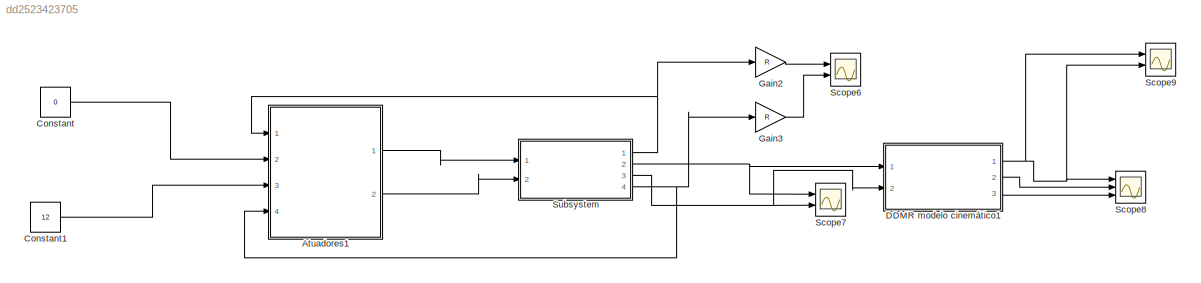
MODEL slx_dd2523423705
KIND model
CONFIG AbsTol = auto
CONFIG EnableMultiTasking = off
CONFIG FixedStep = auto
CONFIG MaxStep = auto
CONFIG MinStep = auto
CONFIG RelTol = 1e-3
CONFIG SampleTimeConstraint = Unconstrained
CONFIG Solver = VariableStepAuto
CONFIG SolverName = VariableStepAuto
CONFIG StartTime = 0.0
CONFIG StopTime = 10.0
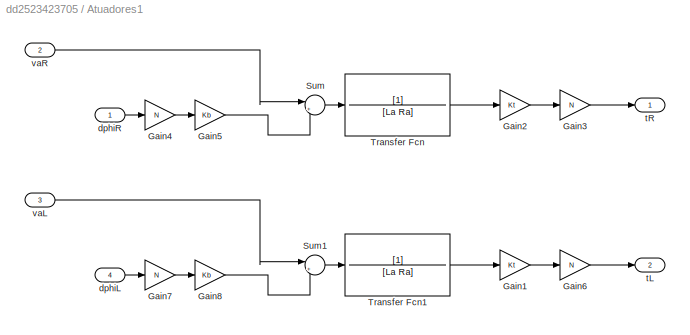
BLOCK [SubSystem] Atuadores1
  Ports = [4, 2]
  RequestExecContextInheritance = off
BLOCK [Gain] Atuadores1/Gain1
  Gain = Kt
  OutDataTypeStr = Inherit: Inherit via internal rule
  ParamDataTypeStr = Inherit: Inherit via internal rule
  SaturateOnIntegerOverflow = off
BLOCK [Gain] Atuadores1/Gain2
  Gain = Kt
  OutDataTypeStr = Inherit: Inherit via internal rule
  ParamDataTypeStr = Inherit: Inherit via internal rule
  SaturateOnIntegerOverflow = off
BLOCK [Gain] Atuadores1/Gain3
  Gain = N
  OutDataTypeStr = Inherit: Inherit via internal rule
  ParamDataTypeStr = Inherit: Inherit via internal rule
  SaturateOnIntegerOverflow = off
BLOCK [Gain] Atuadores1/Gain4
  Gain = N
  OutDataTypeStr = Inherit: Inherit via internal rule
  ParamDataTypeStr = Inherit: Inherit via internal rule
  SaturateOnIntegerOverflow = off
BLOCK [Gain] Atuadores1/Gain5
  Gain = Kb
  OutDataTypeStr = Inherit: Inherit via internal rule
  ParamDataTypeStr = Inherit: Inherit via internal rule
  SaturateOnIntegerOverflow = off
BLOCK [Gain] Atuadores1/Gain6
  Gain = N
  OutDataTypeStr = Inherit: Inherit via internal rule
  ParamDataTypeStr = Inherit: Inherit via internal rule
  SaturateOnIntegerOverflow = off
BLOCK [Gain] Atuadores1/Gain7
  Gain = N
  OutDataTypeStr = Inherit: Inherit via internal rule
  ParamDataTypeStr = Inherit: Inherit via internal rule
  SaturateOnIntegerOverflow = off
BLOCK [Gain] Atuadores1/Gain8
  Gain = Kb
  OutDataTypeStr = Inherit: Inherit via internal rule
  ParamDataTypeStr = Inherit: Inherit via internal rule
  SaturateOnIntegerOverflow = off
BLOCK [Sum] Atuadores1/Sum
  IconShape = round
  InputSameDT = off
  Inputs = |+-
  OutDataTypeStr = Inherit: Inherit via internal rule
  Ports = [2, 1]
  SaturateOnIntegerOverflow = off
BLOCK [Sum] Atuadores1/Sum1
  IconShape = round
  InputSameDT = off
  Inputs = |+-
  OutDataTypeStr = Inherit: Inherit via internal rule
  Ports = [2, 1]
  SaturateOnIntegerOverflow = off
BLOCK [TransferFcn] Atuadores1/Transfer Fcn
  Denominator = [La Ra]
BLOCK [TransferFcn] Atuadores1/Transfer Fcn1
  Denominator = [La Ra]
BLOCK [Inport] Atuadores1/dphiL
  IconDisplay = Port number
  Port = 4
BLOCK [Inport] Atuadores1/dphiR
  IconDisplay = Port number
BLOCK [Outport] Atuadores1/tL
  IconDisplay = Port number
  Port = 2
BLOCK [Outport] Atuadores1/tR
  IconDisplay = Port number
BLOCK [Inport] Atuadores1/vaL
  IconDisplay = Port number
  Port = 3
BLOCK [Inport] Atuadores1/vaR
  IconDisplay = Port number
  Port = 2
BLOCK [Constant] Constant
  Value = 0
BLOCK [Constant] Constant1
  Value = 12
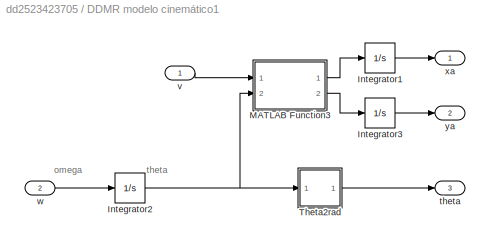
BLOCK [SubSystem] DDMR modelo cinemático1
  Ports = [2, 3]
  RequestExecContextInheritance = off
BLOCK [Integrator] DDMR modelo cinemático1/Integrator1
  Ports = [1, 1]
BLOCK [Integrator] DDMR modelo cinemático1/Integrator2
  Ports = [1, 1]
BLOCK [Integrator] DDMR modelo cinemático1/Integrator3
  Ports = [1, 1]
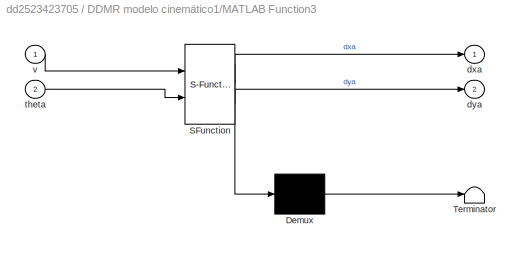
BLOCK [SubSystem] DDMR modelo cinemático1/MATLAB Function3
  ErrorFcn = Stateflow.Translate.translate
  PermitHierarchicalResolution = ExplicitOnly
  Ports = [2, 2]
  RequestExecContextInheritance = off
  SFBlockType = MATLAB Function
  TreatAsAtomicUnit = on
BLOCK [Demux] DDMR modelo cinemático1/MATLAB Function3/ Demux 
  Outputs = 1
  Ports = [1, 1]
BLOCK [S-Function] DDMR modelo cinemático1/MATLAB Function3/ SFunction 
  EnableBusSupport = on
  FunctionName = sf_sfun
  PortCounts = [2 3]
  Ports = [2, 3]
  SFcnIsStateOwnerBlock = off
  SFunctionDeploymentMode = off
  Tag = Stateflow S-Function ex 4
BLOCK [Terminator] DDMR modelo cinemático1/MATLAB Function3/ Terminator 
BLOCK [Outport] DDMR modelo cinemático1/MATLAB Function3/dxa
  IconDisplay = Port number
BLOCK [Outport] DDMR modelo cinemático1/MATLAB Function3/dya
  IconDisplay = Port number
  Port = 2
BLOCK [Inport] DDMR modelo cinemático1/MATLAB Function3/theta
  IconDisplay = Port number
  Port = 2
BLOCK [Inport] DDMR modelo cinemático1/MATLAB Function3/v
  IconDisplay = Port number
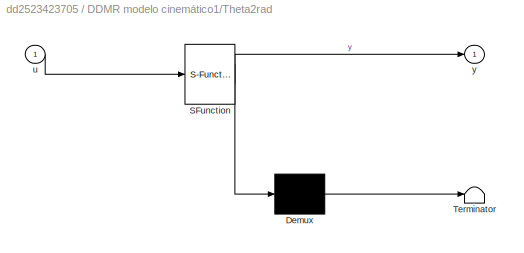
BLOCK [SubSystem] DDMR modelo cinemático1/Theta2rad
  ErrorFcn = Stateflow.Translate.translate
  PermitHierarchicalResolution = ExplicitOnly
  Ports = [1, 1]
  RequestExecContextInheritance = off
  SFBlockType = MATLAB Function
  TreatAsAtomicUnit = on
BLOCK [Demux] DDMR modelo cinemático1/Theta2rad/ Demux 
  Outputs = 1
  Ports = [1, 1]
BLOCK [S-Function] DDMR modelo cinemático1/Theta2rad/ SFunction 
  EnableBusSupport = on
  FunctionName = sf_sfun
  PortCounts = [1 2]
  Ports = [1, 2]
  SFcnIsStateOwnerBlock = off
  SFunctionDeploymentMode = off
  Tag = Stateflow S-Function ex 5
BLOCK [Terminator] DDMR modelo cinemático1/Theta2rad/ Terminator 
BLOCK [Inport] DDMR modelo cinemático1/Theta2rad/u
  IconDisplay = Port number
BLOCK [Outport] DDMR modelo cinemático1/Theta2rad/y
  IconDisplay = Port number
BLOCK [Outport] DDMR modelo cinemático1/theta
  IconDisplay = Port number
  Port = 3
BLOCK [Inport] DDMR modelo cinemático1/v
  IconDisplay = Port number
BLOCK [Inport] DDMR modelo cinemático1/w
  IconDisplay = Port number
  Port = 2
BLOCK [Outport] DDMR modelo cinemático1/xa
  IconDisplay = Port number
BLOCK [Outport] DDMR modelo cinemático1/ya
  IconDisplay = Port number
  Port = 2
BLOCK [Gain] Gain2
  Gain = R
  OutDataTypeStr = Inherit: Inherit via internal rule
  ParamDataTypeStr = Inherit: Inherit via internal rule
  SaturateOnIntegerOverflow = off
BLOCK [Gain] Gain3
  Gain = R
  OutDataTypeStr = Inherit: Inherit via internal rule
  ParamDataTypeStr = Inherit: Inherit via internal rule
  SaturateOnIntegerOverflow = off
BLOCK [Scope] Scope6
  Floating = off
  NumInputPorts = 2
  Ports = [2]
  ScopeSpecificationString = Simulink.scopes.TimeScopeBlockCfg('CurrentConfiguration', extmgr.ConfigurationSet(extmgr.Configuration('Core','General UI',true),extmgr.Configuration('Core','Source UI',true),extmgr.Configuration('Sources','WiredSimulink',true,'DataLoggingVariableName','ScopeData2'),extmgr.Configuration('Visuals','Time Domain',true,'SerializedDisplays',{struct('MinYLimReal','-4.75013','MaxYLimReal','6.00309','YLab...<+1399ch>
BLOCK [Scope] Scope7
  Floating = off
  NumInputPorts = 2
  Ports = [2]
  ScopeSpecificationString = Simulink.scopes.TimeScopeBlockCfg('CurrentConfiguration', extmgr.ConfigurationSet(extmgr.Configuration('Core','General UI',true),extmgr.Configuration('Core','Source UI',true),extmgr.Configuration('Sources','WiredSimulink',true,'DataLoggingVariableName','ScopeData3'),extmgr.Configuration('Visuals','Time Domain',true,'SerializedDisplays',{struct('MinYLimReal','-15.87477','MaxYLimReal','5.70562','YLa...<+1415ch>
BLOCK [Scope] Scope8
  Floating = off
  NumInputPorts = 3
  Ports = [3]
  ScopeSpecificationString = Simulink.scopes.TimeScopeBlockCfg('CurrentConfiguration', extmgr.ConfigurationSet(extmgr.Configuration('Core','General UI',true),extmgr.Configuration('Core','Source UI',true),extmgr.Configuration('Sources','WiredSimulink',true,'DataLoggingVariableName','ScopeData4'),extmgr.Configuration('Visuals','Time Domain',true,'SerializedDisplays',{struct('MinYLimReal','-3.89804','MaxYLimReal','3.90704','YLab...<+1467ch>
BLOCK [Scope] Scope9
  Floating = off
  NumInputPorts = 2
  Ports = [2]
  ScopeSpecificationString = Simulink.scopes.TimeScopeBlockCfg('CurrentConfiguration', extmgr.ConfigurationSet(extmgr.Configuration('Core','General UI',true),extmgr.Configuration('Core','Source UI',true),extmgr.Configuration('Sources','WiredSimulink',true,'DataLoggingVariableName','ScopeData5'),extmgr.Configuration('Visuals','Time Domain',true,'SerializedDisplays',{struct('MinYLimReal','-0.80544','MaxYLimReal','0.64204','YLab...<+1439ch>
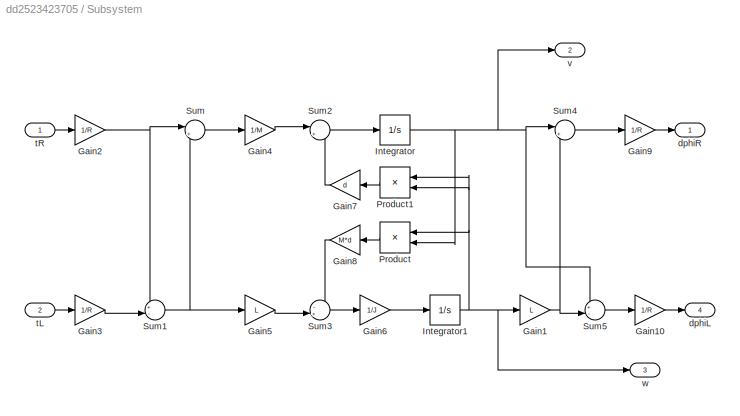
BLOCK [SubSystem] Subsystem
  Ports = [2, 4]
  RequestExecContextInheritance = off
BLOCK [Gain] Subsystem/Gain1
  Gain = L
  OutDataTypeStr = Inherit: Inherit via internal rule
  ParamDataTypeStr = Inherit: Inherit via internal rule
  SaturateOnIntegerOverflow = off
BLOCK [Gain] Subsystem/Gain10
  Gain = 1/R
  OutDataTypeStr = Inherit: Inherit via internal rule
  ParamDataTypeStr = Inherit: Inherit via internal rule
  SaturateOnIntegerOverflow = off
BLOCK [Gain] Subsystem/Gain2
  Gain = 1/R
  OutDataTypeStr = Inherit: Inherit via internal rule
  ParamDataTypeStr = Inherit: Inherit via internal rule
  SaturateOnIntegerOverflow = off
BLOCK [Gain] Subsystem/Gain3
  Gain = 1/R
  OutDataTypeStr = Inherit: Inherit via internal rule
  ParamDataTypeStr = Inherit: Inherit via internal rule
  SaturateOnIntegerOverflow = off
BLOCK [Gain] Subsystem/Gain4
  Gain = 1/M
  OutDataTypeStr = Inherit: Inherit via internal rule
  ParamDataTypeStr = Inherit: Inherit via internal rule
  SaturateOnIntegerOverflow = off
BLOCK [Gain] Subsystem/Gain5
  Gain = L
  OutDataTypeStr = Inherit: Inherit via internal rule
  ParamDataTypeStr = Inherit: Inherit via internal rule
  SaturateOnIntegerOverflow = off
BLOCK [Gain] Subsystem/Gain6
  Gain = 1/J
  OutDataTypeStr = Inherit: Inherit via internal rule
  ParamDataTypeStr = Inherit: Inherit via internal rule
  SaturateOnIntegerOverflow = off
BLOCK [Gain] Subsystem/Gain7
  Gain = d
  OutDataTypeStr = Inherit: Inherit via internal rule
  ParamDataTypeStr = Inherit: Inherit via internal rule
  SaturateOnIntegerOverflow = off
BLOCK [Gain] Subsystem/Gain8
  Gain = M*d
  OutDataTypeStr = Inherit: Inherit via internal rule
  ParamDataTypeStr = Inherit: Inherit via internal rule
  SaturateOnIntegerOverflow = off
BLOCK [Gain] Subsystem/Gain9
  Gain = 1/R
  OutDataTypeStr = Inherit: Inherit via internal rule
  ParamDataTypeStr = Inherit: Inherit via internal rule
  SaturateOnIntegerOverflow = off
BLOCK [Integrator] Subsystem/Integrator
  Ports = [1, 1]
BLOCK [Integrator] Subsystem/Integrator1
  Ports = [1, 1]
BLOCK [Product] Subsystem/Product
  InputSameDT = off
  OutDataTypeStr = Inherit: Inherit via internal rule
  Ports = [2, 1]
  RndMeth = Floor
  SaturateOnIntegerOverflow = off
BLOCK [Product] Subsystem/Product1
  InputSameDT = off
  OutDataTypeStr = Inherit: Inherit via internal rule
  Ports = [2, 1]
  RndMeth = Floor
  SaturateOnIntegerOverflow = off
BLOCK [Sum] Subsystem/Sum
  IconShape = round
  InputSameDT = off
  Inputs = |++
  OutDataTypeStr = Inherit: Inherit via internal rule
  Ports = [2, 1]
  SaturateOnIntegerOverflow = off
BLOCK [Sum] Subsystem/Sum1
  IconShape = round
  InputSameDT = off
  Inputs = +-|
  OutDataTypeStr = Inherit: Inherit via internal rule
  Ports = [2, 1]
  SaturateOnIntegerOverflow = off
BLOCK [Sum] Subsystem/Sum2
  IconShape = round
  InputSameDT = off
  Inputs = |++
  OutDataTypeStr = Inherit: Inherit via internal rule
  Ports = [2, 1]
  SaturateOnIntegerOverflow = off
BLOCK [Sum] Subsystem/Sum3
  IconShape = round
  InputSameDT = off
  Inputs = -+|
  OutDataTypeStr = Inherit: Inherit via internal rule
  Ports = [2, 1]
  SaturateOnIntegerOverflow = off
BLOCK [Sum] Subsystem/Sum4
  IconShape = round
  InputSameDT = off
  Inputs = |++
  OutDataTypeStr = Inherit: Inherit via internal rule
  Ports = [2, 1]
  SaturateOnIntegerOverflow = off
BLOCK [Sum] Subsystem/Sum5
  IconShape = round
  InputSameDT = off
  Inputs = +-|
  OutDataTypeStr = Inherit: Inherit via internal rule
  Ports = [2, 1]
  SaturateOnIntegerOverflow = off
BLOCK [Outport] Subsystem/dphiL
  IconDisplay = Port number
  Port = 4
BLOCK [Outport] Subsystem/dphiR
  IconDisplay = Port number
BLOCK [Inport] Subsystem/tL
  IconDisplay = Port number
  Port = 2
BLOCK [Inport] Subsystem/tR
  IconDisplay = Port number
BLOCK [Outport] Subsystem/v
  IconDisplay = Port number
  Port = 2
BLOCK [Outport] Subsystem/w
  IconDisplay = Port number
  Port = 3
ANNOTATION DDMR modelo cinemático1: omega
ANNOTATION DDMR modelo cinemático1: theta
LINE Atuadores1/Gain1:1 -> Atuadores1/Gain6:1
LINE Atuadores1/Gain2:1 -> Atuadores1/Gain3:1
LINE Atuadores1/Gain3:1 -> Atuadores1/tR:1
LINE Atuadores1/Gain4:1 -> Atuadores1/Gain5:1
LINE Atuadores1/Gain5:1 -> Atuadores1/Sum:2
LINE Atuadores1/Gain6:1 -> Atuadores1/tL:1
LINE Atuadores1/Gain7:1 -> Atuadores1/Gain8:1
LINE Atuadores1/Gain8:1 -> Atuadores1/Sum1:2
LINE Atuadores1/Sum1:1 -> Atuadores1/Transfer Fcn1:1
LINE Atuadores1/Sum:1 -> Atuadores1/Transfer Fcn:1
LINE Atuadores1/Transfer Fcn1:1 -> Atuadores1/Gain1:1
LINE Atuadores1/Transfer Fcn:1 -> Atuadores1/Gain2:1
LINE Atuadores1/dphiL:1 -> Atuadores1/Gain7:1
LINE Atuadores1/dphiR:1 -> Atuadores1/Gain4:1
LINE Atuadores1/vaL:1 -> Atuadores1/Sum1:1
LINE Atuadores1/vaR:1 -> Atuadores1/Sum:1
LINE Atuadores1:1 -> Subsystem:1
LINE Atuadores1:2 -> Subsystem:2
LINE Constant1:1 -> Atuadores1:3
LINE Constant:1 -> Atuadores1:2
LINE DDMR modelo cinemático1/Integrator1:1 -> DDMR modelo cinemático1/xa:1
NET DDMR modelo cinemático1/Integrator2:1 -> DDMR modelo cinemático1/MATLAB Function3:2, DDMR modelo cinemático1/Theta2rad:1
LINE DDMR modelo cinemático1/Integrator3:1 -> DDMR modelo cinemático1/ya:1
LINE DDMR modelo cinemático1/MATLAB Function3:1 -> DDMR modelo cinemático1/Integrator1:1
LINE DDMR modelo cinemático1/MATLAB Function3:2 -> DDMR modelo cinemático1/Integrator3:1
LINE DDMR modelo cinemático1/Theta2rad:1 -> DDMR modelo cinemático1/theta:1
LINE DDMR modelo cinemático1/v:1 -> DDMR modelo cinemático1/MATLAB Function3:1
LINE DDMR modelo cinemático1/w:1 -> DDMR modelo cinemático1/Integrator2:1
NET DDMR modelo cinemático1:1 -> Scope8:1, Scope9:1, Scope9:2
LINE DDMR modelo cinemático1:2 -> Scope8:2
LINE DDMR modelo cinemático1:3 -> Scope8:3
LINE Gain2:1 -> Scope6:1
LINE Gain3:1 -> Scope6:2
LINE Subsystem/Gain10:1 -> Subsystem/dphiL:1
NET Subsystem/Gain1:1 -> Subsystem/Sum4:2, Subsystem/Sum5:2
NET Subsystem/Gain2:1 -> Subsystem/Sum1:1, Subsystem/Sum:1
LINE Subsystem/Gain3:1 -> Subsystem/Sum1:2
LINE Subsystem/Gain4:1 -> Subsystem/Sum2:1
LINE Subsystem/Gain5:1 -> Subsystem/Sum3:2
LINE Subsystem/Gain6:1 -> Subsystem/Integrator1:1
LINE Subsystem/Gain7:1 -> Subsystem/Sum2:2
LINE Subsystem/Gain8:1 -> Subsystem/Sum3:1
LINE Subsystem/Gain9:1 -> Subsystem/dphiR:1
NET Subsystem/Integrator1:1 -> Subsystem/Gain1:1, Subsystem/Product1:1, Subsystem/Product1:2, Subsystem/Product:1, Subsystem/w:1
NET Subsystem/Integrator:1 -> Subsystem/Product:2, Subsystem/Sum4:1, Subsystem/Sum5:1, Subsystem/v:1
LINE Subsystem/Product1:1 -> Subsystem/Gain7:1
LINE Subsystem/Product:1 -> Subsystem/Gain8:1
NET Subsystem/Sum1:1 -> Subsystem/Gain5:1, Subsystem/Sum:2
LINE Subsystem/Sum2:1 -> Subsystem/Integrator:1
LINE Subsystem/Sum3:1 -> Subsystem/Gain6:1
LINE Subsystem/Sum4:1 -> Subsystem/Gain9:1
LINE Subsystem/Sum5:1 -> Subsystem/Gain10:1
LINE Subsystem/Sum:1 -> Subsystem/Gain4:1
LINE Subsystem/tL:1 -> Subsystem/Gain3:1
LINE Subsystem/tR:1 -> Subsystem/Gain2:1
NET Subsystem:1 -> Atuadores1:1, Gain2:1
NET Subsystem:2 -> DDMR modelo cinemático1:1, Scope7:1
NET Subsystem:3 -> DDMR modelo cinemático1:2, Scope7:2
NET Subsystem:4 -> Atuadores1:4, Gain3:1
note: NET lines group one-source signal fan-out (src -> all destinations, sorted); 1:1 wires keep LINE
CHART DDMR
modelo cinemático1/MATLAB Function3 states=1 transitions=1
  STATE_LABEL 'eML_blk_kernel()'
  STATE_LABEL 'SCRIPT:\nfunction [dxa, dya]  = fcn(v, theta)\n\ndxa = cos(theta)*v;\ndya = sin(theta)*v;\n'
CHART DDMR
modelo cinemático1/Theta2rad states=1 transitions=1
  STATE_LABEL 'eML_blk_kernel()'
  STATE_LABEL 'SCRIPT:\nfunction y = fcn(u)\n\ny = u;\nwhile (abs(y) > pi)\n    if(y > 0)\n        y = y - 2*pi;\n    else\n        y = y + 2*pi;\n    end\nend\n\nend\n'
